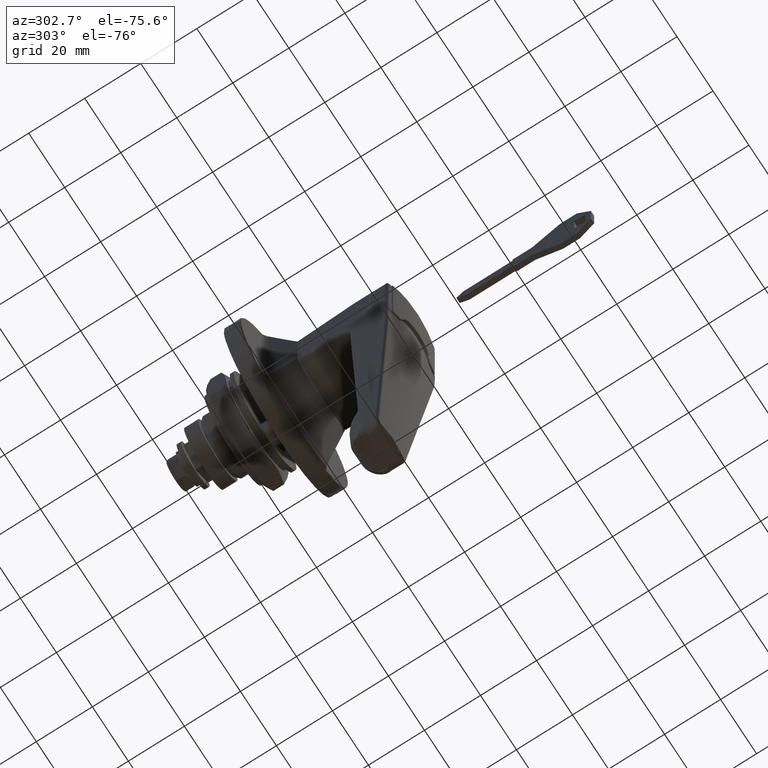
[diagram: clean part render]
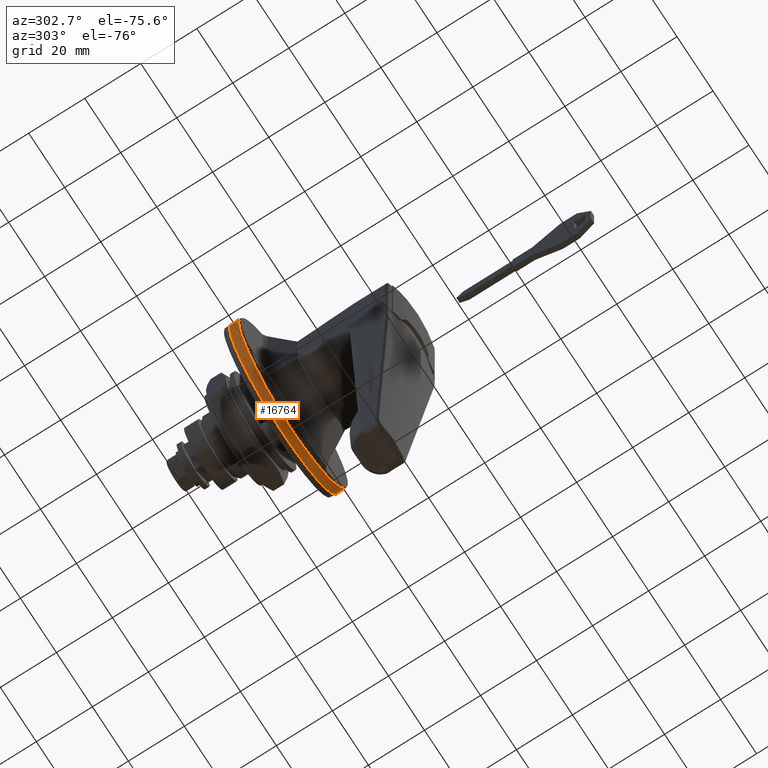
[diagram: same view with one face highlighted and labeled with its STEP entity id]
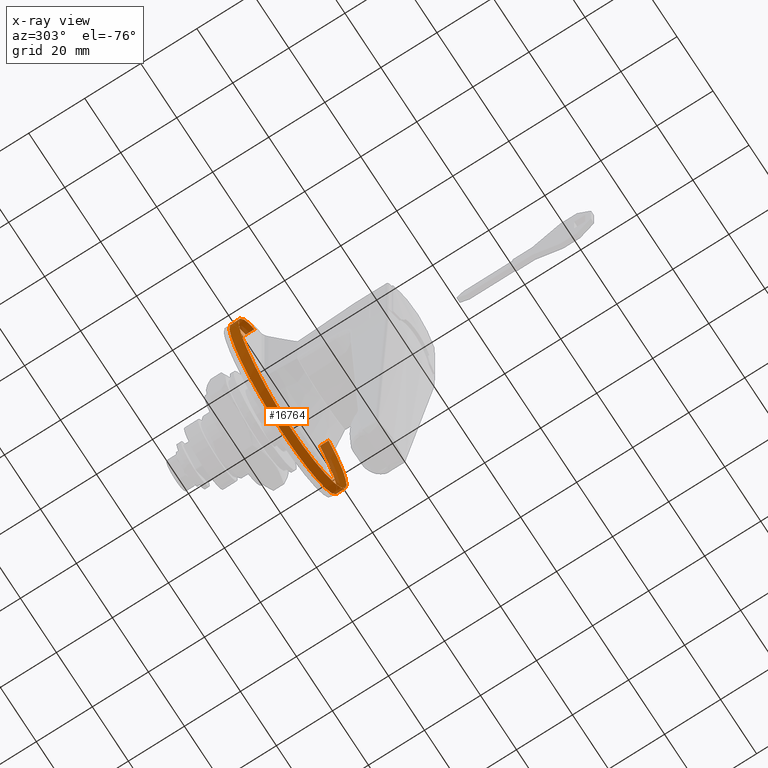
[diagram: x-ray of the same camera — body ghosted, the highlighted face saturated]
A machine part, auxiliary view. The second image highlights one B-rep face of the part: STEP entity #16764.
The next image is the same camera in x-ray: the body ghosted, the highlighted face saturated — about 11% of this face is hidden behind the body in this view.
In plain terms, the highlighted face is a freeform B-spline surface patch.
Its self-contained STEP definition (entity closure, byte-faithful):
#16516=CARTESIAN_POINT('',(-0.917377378766176,20.922959771710907,21.499529166736799));
#16517=CARTESIAN_POINT('',(-0.917377378766176,21.538267059640454,20.900723047181934));
#16518=CARTESIAN_POINT('',(-0.917377378766176,22.118320104303720,20.267706228469791));
#16519=CARTESIAN_POINT('',(-0.917377378766176,42.386026332773511,-1.850613875833936));
#16520=CARTESIAN_POINT('',(-0.917377378766176,20.267706228469791,-22.118320104303720));
#16521=CARTESIAN_POINT('',(-0.917377378766176,-1.850613875833936,-42.386026332773511));
#16522=CARTESIAN_POINT('',(-0.917377378766176,-22.118320104303720,-20.267706228469791));
#16523=CARTESIAN_POINT('',(-0.917377378766176,-42.386026332773511,1.850613875833936));
#16524=CARTESIAN_POINT('',(-0.917377378766176,-20.267706228469791,22.118320104303720));
#16525=CARTESIAN_POINT('',(-4.389593036112998,20.922959771710907,21.499529166736799));
#16526=CARTESIAN_POINT('',(-4.389593036112998,21.538267059640454,20.900723047181934));
#16527=CARTESIAN_POINT('',(-4.389593036112998,22.118320104303720,20.267706228469791));
#16528=CARTESIAN_POINT('',(-4.389593036112997,42.386026332773511,-1.850613875833936));
#16529=CARTESIAN_POINT('',(-4.389593036112998,20.267706228469791,-22.118320104303720));
#16530=CARTESIAN_POINT('',(-4.389593036112997,-1.850613875833936,-42.386026332773511));
#16531=CARTESIAN_POINT('',(-4.389593036112998,-22.118320104303720,-20.267706228469791));
#16532=CARTESIAN_POINT('',(-4.389593036112997,-42.386026332773511,1.850613875833936));
#16533=CARTESIAN_POINT('',(-4.389593036112998,-20.267706228469791,22.118320104303720));
#16541=(BOUNDED_SURFACE()B_SPLINE_SURFACE(2,1,((#16516,#16525),(#16517,#16526),(#16518,#16527),(#16519,#16528),(#16520,#16529),(#16521,#16530),(#16522,#16531),(#16523,#16532),(#16524,#16533)),.UNSPECIFIED.,.F.,.F.,.U.)B_SPLINE_SURFACE_WITH_KNOTS((3,2,2,2,3),(2,2),(0.0,1.988225099390859,51.693852584162251,101.399480068933600,151.105107553705010),(0.0,3.472215657346822),.UNSPECIFIED.)GEOMETRIC_REPRESENTATION_ITEM()RATIONAL_B_SPLINE_SURFACE(((0.977505800795127,0.977505800795127),(0.988284271247462,0.988284271247462),(1.0,1.0),(0.707106781186548,0.707106781186548),(1.0,1.0),(0.707106781186548,0.707106781186548),(1.0,1.0),(0.707106781186548,0.707106781186548),(1.0,1.0)))REPRESENTATION_ITEM('')SURFACE());
#16542=CARTESIAN_POINT('',(-4.304904849348441,30.0,-9.706398E-013));
#16543=VERTEX_POINT('',#16542);
#16544=CARTESIAN_POINT('',(-4.120643377488585,20.922971048391840,21.499522020460400));
#16545=VERTEX_POINT('',#16544);
#16546=CARTESIAN_POINT('',(-4.304904849348441,30.0,-9.706398E-013));
#16547=CARTESIAN_POINT('',(-4.302065136896840,29.999999926868309,0.978743073472528));
#16548=CARTESIAN_POINT('',(-4.299073368518741,29.952216771473442,1.954933006987231));
#16549=CARTESIAN_POINT('',(-4.291547223905221,29.761217068145299,3.902178930173397));
#16550=CARTESIAN_POINT('',(-4.287021009555033,29.618007104593151,4.873235500056715));
#16551=CARTESIAN_POINT('',(-4.280376423068679,29.377691768448638,6.083758471673516));
#16552=CARTESIAN_POINT('',(-4.279000724589303,29.326556348264639,6.325697866234449));
#16553=CARTESIAN_POINT('',(-4.276164685311580,29.218069263054510,6.809242690012811));
#16554=CARTESIAN_POINT('',(-4.274709173104317,29.160899709232741,7.050025150986446));
#16555=CARTESIAN_POINT('',(-4.270256346858888,28.980910081691480,7.768569564396342));
#16556=CARTESIAN_POINT('',(-4.267169577243630,28.849529812584070,8.242909400827921));
#16557=CARTESIAN_POINT('',(-4.257764245192155,28.421833194157621,9.652110509536689));
#16558=CARTESIAN_POINT('',(-4.251294744525851,28.092040351878190,10.573186000262419));
#16559=CARTESIAN_POINT('',(-4.239346878950053,27.344353906209840,12.379066525409399));
#16560=CARTESIAN_POINT('',(-4.233770539720596,26.926460355218119,13.263870885405870));
#16561=CARTESIAN_POINT('',(-4.223749675703872,26.232555554936319,14.563450332531961));
#16562=CARTESIAN_POINT('',(-4.220142810445370,25.990056732111569,14.992030876057729));
#16563=CARTESIAN_POINT('',(-4.214145637448444,25.609200328220290,15.627852843287910));
#16564=CARTESIAN_POINT('',(-4.212046779273161,25.479234300684499,15.838870578674079));
#16565=CARTESIAN_POINT('',(-4.207645922797154,25.214317405530831,16.257287464959969));
#16566=CARTESIAN_POINT('',(-4.205346949305622,25.079540527050899,16.464427765792021));
#16567=CARTESIAN_POINT('',(-4.193334247387852,24.394194799988352,17.489904698119819));
#16568=CARTESIAN_POINT('',(-4.182003289632653,23.809328140149269,18.277643277162070));
#16569=CARTESIAN_POINT('',(-4.156325959874822,22.568336892980280,19.789555474376328));
#16570=CARTESIAN_POINT('',(-4.142013276483199,21.912208027786338,20.513725892029161));
#16571=CARTESIAN_POINT('',(-4.124934418089857,21.121951010038011,21.304516016329242));
#16572=CARTESIAN_POINT('',(-4.122794604672652,21.022823971007789,21.402342601792551));
#16573=CARTESIAN_POINT('',(-4.120643377488585,20.922971048391840,21.499522020460400));
#16574=B_SPLINE_CURVE_WITH_KNOTS('',3,(#16546,#16547,#16548,#16549,#16550,#16551,#16552,#16553,#16554,#16555,#16556,#16557,#16558,#16559,#16560,#16561,#16562,#16563,#16564,#16565,#16566,#16567,#16568,#16569,#16570,#16571,#16572,#16573),.UNSPECIFIED.,.F.,.U.,(4,2,2,2,2,2,2,2,2,2,2,2,2,4),(0.0,0.062499999999999,0.124999999999999,0.140624999999999,0.156249999999999,0.187499999999999,0.249999999999998,0.312499999999998,0.343749999999998,0.359374999999998,0.374999999999998,0.437499999999998,0.499999999999998,0.508889579825999),.UNSPECIFIED.);
#16575=EDGE_CURVE('',#16543,#16545,#16574,.T.);
#16576=ORIENTED_EDGE('',*,*,#16575,.T.);
#16577=CARTESIAN_POINT('',(-0.999999999999890,20.922958555404961,21.499530350423999));
#16578=VERTEX_POINT('',#16577);
#16579=CARTESIAN_POINT('',(-0.999999999999890,20.922958555404961,21.499530350423999));
#16580=CARTESIAN_POINT('',(-4.120643377488585,20.922971048391840,21.499522020460400));
#16581=QUASI_UNIFORM_CURVE('',1,(#16579,#16580),.UNSPECIFIED.,.F.,.U.);
#16582=EDGE_CURVE('',#16578,#16545,#16581,.T.);
#16583=ORIENTED_EDGE('',*,*,#16582,.F.);
#16584=CARTESIAN_POINT('',(-0.999999999999890,0.0,-30.0));
#16585=VERTEX_POINT('',#16584);
#16586=CARTESIAN_POINT('',(-0.999999999999890,0.0,-30.0));
#16587=CARTESIAN_POINT('',(-0.999999999999890,29.999999999999993,-29.999999999999993));
#16588=CARTESIAN_POINT('',(-0.999999999999890,30.0,0.0));
#16589=CARTESIAN_POINT('',(-0.999999999999890,30.0,12.665915901389861));
#16590=CARTESIAN_POINT('',(-0.999999999999890,20.922958555404964,21.499530350424010));
#16598=(BOUNDED_CURVE()B_SPLINE_CURVE(2,(#16586,#16587,#16588,#16589,#16590),.UNSPECIFIED.,.F.,.U.)B_SPLINE_CURVE_WITH_KNOTS((3,2,3),(0.0,0.250000000000000,0.377050656396983),.UNSPECIFIED.)CURVE()GEOMETRIC_REPRESENTATION_ITEM()RATIONAL_B_SPLINE_CURVE((1.0,0.707106781186547,1.0,0.851150897182103,0.853592804101132))REPRESENTATION_ITEM(''));
#16599=EDGE_CURVE('',#16585,#16578,#16598,.T.);
#16600=ORIENTED_EDGE('',*,*,#16599,.F.);
#16601=CARTESIAN_POINT('',(-0.999999999999890,-20.267703128444989,22.118322944952300));
#16602=VERTEX_POINT('',#16601);
#16603=CARTESIAN_POINT('',(-0.999999999999890,-20.267703128444985,22.118322944952300));
#16604=CARTESIAN_POINT('',(-0.999999999999890,-30.000000000000004,13.200318436134989));
#16605=CARTESIAN_POINT('',(-0.999999999999890,-30.0,0.0));
#16606=CARTESIAN_POINT('',(-0.999999999999890,-29.999999999999993,-29.999999999999993));
#16607=CARTESIAN_POINT('',(-0.999999999999890,0.0,-30.0));
#16615=(BOUNDED_CURVE()B_SPLINE_CURVE(2,(#16603,#16604,#16605,#16606,#16607),.UNSPECIFIED.,.F.,.U.)B_SPLINE_CURVE_WITH_KNOTS((3,2,3),(0.618415187926033,0.750000000000000,1.0),.UNSPECIFIED.)CURVE()GEOMETRIC_REPRESENTATION_ITEM()RATIONAL_B_SPLINE_CURVE((0.853959783449560,0.845838803378770,1.0,0.707106781186547,1.0))REPRESENTATION_ITEM(''));
#16616=EDGE_CURVE('',#16602,#16585,#16615,.T.);
#16617=ORIENTED_EDGE('',*,*,#16616,.F.);
#16618=CARTESIAN_POINT('',(-4.106604976796395,-20.267716212127379,22.118326346990528));
#16619=VERTEX_POINT('',#16618);
#16620=CARTESIAN_POINT('',(-0.999999999999890,-20.267703128444989,22.118322944952300));
#16621=CARTESIAN_POINT('',(-4.106604976796395,-20.267716212127379,22.118326346990528));
#16622=QUASI_UNIFORM_CURVE('',1,(#16620,#16621),.UNSPECIFIED.,.F.,.U.);
#16623=EDGE_CURVE('',#16602,#16619,#16622,.T.);
#16624=ORIENTED_EDGE('',*,*,#16623,.T.);
#16625=CARTESIAN_POINT('',(-4.304904849348360,-30.0,3.166560E-011));
#16626=VERTEX_POINT('',#16625);
#16627=CARTESIAN_POINT('',(-4.106604976796395,-20.267716212127379,22.118326346990528));
#16628=CARTESIAN_POINT('',(-4.113518995237217,-20.592512607079161,21.820701556682700));
#16629=CARTESIAN_POINT('',(-4.120356001375373,-20.910019142552631,21.516578925371000));
#16630=CARTESIAN_POINT('',(-4.142014708307114,-21.912195418758088,20.513728245594670));
#16631=CARTESIAN_POINT('',(-4.156327344719776,-22.568325342550281,19.789557362957371));
#16632=CARTESIAN_POINT('',(-4.182004513668212,-23.809315265616540,18.277649021533989));
#16633=CARTESIAN_POINT('',(-4.193335359470400,-24.394179536509061,17.489914757356381));
#16634=CARTESIAN_POINT('',(-4.205347915031659,-25.079520909266542,16.464447040369141));
#16635=CARTESIAN_POINT('',(-4.207646858868791,-25.214296848648701,16.257308774425141));
#16636=CARTESIAN_POINT('',(-4.212047655619189,-25.479211750001419,15.838896365891790));
#16637=CARTESIAN_POINT('',(-4.214146545501192,-25.609180533376200,15.627874912005030));
#16638=CARTESIAN_POINT('',(-4.220143746642004,-25.990041510442531,14.992047152373679));
#16639=CARTESIAN_POINT('',(-4.223750614978578,-26.232542760206410,14.563463309458530));
#16640=CARTESIAN_POINT('',(-4.233771457810707,-26.926453328179019,13.263875750912179));
#16641=CARTESIAN_POINT('',(-4.239347745482477,-27.344348711893080,12.379068362099069));
#16642=CARTESIAN_POINT('',(-4.251295475731233,-28.092036464755850,10.573187126458331));
#16643=CARTESIAN_POINT('',(-4.257764890480200,-28.421828773783041,9.652113950788706));
#16644=CARTESIAN_POINT('',(-4.267170069245652,-28.849524004619020,8.242920877693921));
#16645=CARTESIAN_POINT('',(-4.270256784040487,-28.980903713350120,7.768584481772437));
#16646=CARTESIAN_POINT('',(-4.274709525358728,-29.160892511428528,7.050046458905258));
#16647=CARTESIAN_POINT('',(-4.276164983269929,-29.218060816731601,6.809270704019568));
#16648=CARTESIAN_POINT('',(-4.279001024681088,-29.326549670013279,6.325720732198890));
#16649=CARTESIAN_POINT('',(-4.280376722468328,-29.377685862338659,6.083778947245750));
#16650=CARTESIAN_POINT('',(-4.287021296822829,-29.618004580165149,4.873244934548551));
#16651=CARTESIAN_POINT('',(-4.291547472695953,-29.761215727409262,3.902182439048056));
#16652=CARTESIAN_POINT('',(-4.299073508863589,-29.952216592002451,1.954930415599012));
#16653=CARTESIAN_POINT('',(-4.302065209444880,-29.999999715881760,0.978740307207720));
#16654=CARTESIAN_POINT('',(-4.304904849348360,-30.0,3.166560E-011));
#16655=B_SPLINE_CURVE_WITH_KNOTS('',3,(#16627,#16628,#16629,#16630,#16631,#16632,#16633,#16634,#16635,#16636,#16637,#16638,#16639,#16640,#16641,#16642,#16643,#16644,#16645,#16646,#16647,#16648,#16649,#16650,#16651,#16652,#16653,#16654),.UNSPECIFIED.,.F.,.U.,(4,2,2,2,2,2,2,2,2,2,2,2,2,4),(0.471966683762916,0.499999999999999,0.562499999999999,0.624999999999999,0.640624999999999,0.656250000000000,0.687500000000000,0.750000000000000,0.812500000000000,0.843750000000000,0.859375000000000,0.875000000000000,0.937500000000000,1.0),.UNSPECIFIED.);
#16656=EDGE_CURVE('',#16619,#16626,#16655,.T.);
#16657=ORIENTED_EDGE('',*,*,#16656,.T.);
#16658=CARTESIAN_POINT('',(-3.864578674720880,7.097530E-017,-30.0));
#16659=VERTEX_POINT('',#16658);
#16660=CARTESIAN_POINT('',(-4.304904849348360,-30.0,3.166560E-011));
#16661=CARTESIAN_POINT('',(-4.302031230138308,-30.000000000001041,-0.990454725199646));
#16662=CARTESIAN_POINT('',(-4.299007346942066,-29.951071420949241,-1.975456653327037));
#16663=CARTESIAN_POINT('',(-4.291408129027746,-29.757131431522001,-3.934747414904977));
#16664=CARTESIAN_POINT('',(-4.286843479467354,-29.612118370440790,-4.909036108968146));
#16665=CARTESIAN_POINT('',(-4.278837909656132,-29.321742823768009,-6.362345892266990));
#16666=CARTESIAN_POINT('',(-4.275979309686639,-29.212534458497249,-6.846252399445560));
#16667=CARTESIAN_POINT('',(-4.270036327648094,-28.971653847351309,-7.802987553178418));
#16668=CARTESIAN_POINT('',(-4.266948345750976,-28.839852901719841,-8.276676299923054));
#16669=CARTESIAN_POINT('',(-4.257545130665905,-28.410965924250629,-9.683953692436653));
#16670=CARTESIAN_POINT('',(-4.251086333889471,-28.080474735171201,-10.603785983168130));
#16671=CARTESIAN_POINT('',(-4.239168485336916,-27.331549611745789,-12.407245236155349));
#16672=CARTESIAN_POINT('',(-4.233586911427616,-26.913115927169869,-13.290871430873731));
#16673=CARTESIAN_POINT('',(-4.223543712948236,-26.218502303326201,-14.588725271448631));
#16674=CARTESIAN_POINT('',(-4.219926968874345,-25.975784160827988,-15.016737577050231));
#16675=CARTESIAN_POINT('',(-4.213913175160633,-25.594622474696099,-15.651716932488929));
#16676=CARTESIAN_POINT('',(-4.211808233845622,-25.464544955000239,-15.862475666650100));
#16677=CARTESIAN_POINT('',(-4.207396820369192,-25.199524159668599,-16.280207804772449));
#16678=CARTESIAN_POINT('',(-4.205092497368956,-25.064700574318579,-16.487010403352659));
#16679=CARTESIAN_POINT('',(-4.193053413638390,-24.379146309623881,-17.510821109874779));
#16680=CARTESIAN_POINT('',(-4.181702895578319,-23.794192396730161,-18.297297660932820));
#16681=CARTESIAN_POINT('',(-4.156002081723186,-22.553161809093979,-19.806806555278250));
#16682=CARTESIAN_POINT('',(-4.141686525641770,-21.897080945993149,-20.529835796921859));
#16683=CARTESIAN_POINT('',(-4.111790155808069,-20.513591894497729,-21.912299272097119));
#16684=CARTESIAN_POINT('',(-4.096199772134334,-19.786189657152189,-22.571738635716301));
#16685=CARTESIAN_POINT('',(-4.076645520929774,-18.830924918425389,-23.355027501661599));
#16686=CARTESIAN_POINT('',(-4.072725930390611,-18.637346674659732,-23.509792931106780));
#16687=CARTESIAN_POINT('',(-4.064932334020252,-18.247571453379610,-23.813592563676181));
#16688=CARTESIAN_POINT('',(-4.061054390711020,-18.051187094171951,-23.962789151134569));
#16689=CARTESIAN_POINT('',(-4.049493879209265,-17.457591510360299,-24.402355957971071));
#16690=CARTESIAN_POINT('',(-4.041885561728466,-17.055940550696370,-24.684708255086779));
#16691=CARTESIAN_POINT('',(-4.019453814528780,-15.833503994324939,-25.500193530486200));
#16692=CARTESIAN_POINT('',(-4.005033995769542,-14.995275685876990,-26.001829200576250));
#16693=CARTESIAN_POINT('',(-3.977471599691349,-13.272733017458410,-26.921886503710379));
#16694=CARTESIAN_POINT('',(-3.964318510997015,-12.388419754013080,-27.340309808575089));
#16695=CARTESIAN_POINT('',(-3.945503263068262,-11.026729140617210,-27.904347610490468));
#16696=CARTESIAN_POINT('',(-3.939395168890960,-10.566951561782430,-28.081741889592490));
#16697=CARTESIAN_POINT('',(-3.930573948680280,-9.868280196045607,-28.331576362567990));
#16698=CARTESIAN_POINT('',(-3.927692593441118,-9.634049833796217,-28.412075382885082));
#16699=CARTESIAN_POINT('',(-3.922088371707670,-9.165174869246854,-28.566772890526838));
#16700=CARTESIAN_POINT('',(-3.919361539808763,-8.930220099579845,-28.641084091685759));
#16701=CARTESIAN_POINT('',(-3.906130628483034,-7.752885979081922,-28.997607187122028));
#16702=CARTESIAN_POINT('',(-3.896840163560721,-6.802844630671560,-29.234831117509490));
#16703=CARTESIAN_POINT('',(-3.881446207599793,-4.886773326867385,-29.615426588016181));
#16704=CARTESIAN_POINT('',(-3.875335517918559,-3.920742793865551,-29.758794448693290));
#16705=CARTESIAN_POINT('',(-3.866906345934893,-1.972586726443325,-29.951076319589699));
#16706=CARTESIAN_POINT('',(-3.864578674720875,-0.990462898975278,-30.0));
#16707=CARTESIAN_POINT('',(-3.864578674720875,-1.036910E-014,-30.0));
#16708=B_SPLINE_CURVE_WITH_KNOTS('',3,(#16660,#16661,#16662,#16663,#16664,#16665,#16666,#16667,#16668,#16669,#16670,#16671,#16672,#16673,#16674,#16675,#16676,#16677,#16678,#16679,#16680,#16681,#16682,#16683,#16684,#16685,#16686,#16687,#16688,#16689,#16690,#16691,#16692,#16693,#16694,#16695,#16696,#16697,#16698,#16699,#16700,#16701,#16702,#16703,#16704,#16705,#16706,#16707),.UNSPECIFIED.,.F.,.U.,(4,2,2,2,2,2,2,2,2,2,2,2,2,2,2,2,2,2,2,2,2,2,2,4),(0.0,0.062500000000000,0.125000000000000,0.156250000000000,0.187500000000001,0.250000000000001,0.312500000000001,0.343750000000001,0.359375000000001,0.375000000000001,0.437500000000001,0.500000000000000,0.562500000000000,0.578125000000000,0.593750000000000,0.625000000000000,0.687500000000000,0.750000000000000,0.781250000000000,0.796875000000000,0.812500000000000,0.875000000000000,0.937500000000000,1.0),.UNSPECIFIED.);
#16709=EDGE_CURVE('',#16626,#16659,#16708,.T.);
#16710=ORIENTED_EDGE('',*,*,#16709,.T.);
#16711=CARTESIAN_POINT('',(-3.864578674720880,7.097530E-017,-30.0));
#16712=CARTESIAN_POINT('',(-3.864578674720880,0.990463536698212,-30.0));
#16713=CARTESIAN_POINT('',(-3.866906348203888,1.972586446730886,-29.951076260755539));
#16714=CARTESIAN_POINT('',(-3.875335492944294,3.920737825919935,-29.758795025468039));
#16715=CARTESIAN_POINT('',(-3.881446153344506,4.886764587094893,-29.615427855041919));
#16716=CARTESIAN_POINT('',(-3.896839995148929,6.802825655251746,-29.234835355635688));
#16717=CARTESIAN_POINT('',(-3.906130375067932,7.752860539217773,-28.997613701786879));
#16718=CARTESIAN_POINT('',(-3.919361136731161,8.930184954739039,-28.641095031576860));
#16719=CARTESIAN_POINT('',(-3.922087936561063,9.165137702044431,-28.566784794870241));
#16720=CARTESIAN_POINT('',(-3.927692089829701,9.634008460056878,-28.412089391761000));
#16721=CARTESIAN_POINT('',(-3.930573393838167,9.868235529843876,-28.331591943950450));
#16722=CARTESIAN_POINT('',(-3.939394687715854,10.566914892388750,-28.081755783087669));
#16723=CARTESIAN_POINT('',(-3.945502828447706,11.026696945460101,-27.904360399423069));
#16724=CARTESIAN_POINT('',(-3.964318198678706,12.388398632847560,-27.340319651117792));
#16725=CARTESIAN_POINT('',(-3.977471341595564,13.272716154186369,-26.921894872994180));
#16726=CARTESIAN_POINT('',(-4.005033765920090,14.995262054454480,-26.001837119334240));
#16727=CARTESIAN_POINT('',(-4.019453559389955,15.833489332664531,-25.500202464690879));
#16728=CARTESIAN_POINT('',(-4.041885195487903,17.055920970932711,-24.684721739980269));
#16729=CARTESIAN_POINT('',(-4.049493463774727,17.457569728158980,-24.402371465321679));
#16730=CARTESIAN_POINT('',(-4.061053882671128,18.051161233392460,-23.962808612771980));
#16731=CARTESIAN_POINT('',(-4.064931791989184,18.247544103906019,-23.813613496998499));
#16732=CARTESIAN_POINT('',(-4.072725314244615,18.637316101066151,-23.509817144277509));
#16733=CARTESIAN_POINT('',(-4.076644909091068,18.830894825825862,-23.355051792369679));
#16734=CARTESIAN_POINT('',(-4.096199363630364,19.786170512996179,-22.571755870556501));
#16735=CARTESIAN_POINT('',(-4.111789864669733,20.513578370828380,-21.912312116415720));
#16736=CARTESIAN_POINT('',(-4.141686372743576,21.897073921358739,-20.529843485664671));
#16737=CARTESIAN_POINT('',(-4.156001949047836,22.553155656057928,-19.806813473390388));
#16738=CARTESIAN_POINT('',(-4.181702737937717,23.794184531108900,-18.297307794197341));
#16739=CARTESIAN_POINT('',(-4.193053212673995,24.379135853606090,-17.510835223053270));
#16740=CARTESIAN_POINT('',(-4.205092236986832,25.064685500193100,-16.487033290589430));
#16741=CARTESIAN_POINT('',(-4.207396547781302,25.199508093079260,-16.280232637502891));
#16742=CARTESIAN_POINT('',(-4.211807936572477,25.464526786564679,-15.862504795924000));
#16743=CARTESIAN_POINT('',(-4.213912922365642,25.594606700445109,-15.651742766626629));
#16744=CARTESIAN_POINT('',(-4.219926797603082,25.975772809069479,-15.016757376480440));
#16745=CARTESIAN_POINT('',(-4.223543580284372,26.218493276469928,-14.588741608226240));
#16746=CARTESIAN_POINT('',(-4.233586864099654,26.913112356813990,-13.290879160878260));
#16747=CARTESIAN_POINT('',(-4.239168457337343,27.331547659943048,-12.407249599732960));
#16748=CARTESIAN_POINT('',(-4.251086313491420,28.080473645634790,-10.603788943326901));
#16749=CARTESIAN_POINT('',(-4.257545095653911,28.410964070744839,-9.683958612343997));
#16750=CARTESIAN_POINT('',(-4.266948263926250,28.839849297928851,-8.276688705722814));
#16751=CARTESIAN_POINT('',(-4.270036226405198,28.971649559493731,-7.803003213439597));
#16752=CARTESIAN_POINT('',(-4.275979165797551,29.212528810671280,-6.846276201904415));
#16753=CARTESIAN_POINT('',(-4.278837768558293,29.321737542101118,-6.362370493262452));
#16754=CARTESIAN_POINT('',(-4.286843408168476,29.612116111917580,-4.909051079374512));
#16755=CARTESIAN_POINT('',(-4.291408087225596,29.757130235475699,-3.934757366253593));
#16756=CARTESIAN_POINT('',(-4.299007339346239,29.951071356306262,-1.975459438156102));
#16757=CARTESIAN_POINT('',(-4.302031228290619,29.999999999999972,-0.990455362047679));
#16758=CARTESIAN_POINT('',(-4.304904849348445,30.0,-9.810806E-013));
#16759=B_SPLINE_CURVE_WITH_KNOTS('',3,(#16711,#16712,#16713,#16714,#16715,#16716,#16717,#16718,#16719,#16720,#16721,#16722,#16723,#16724,#16725,#16726,#16727,#16728,#16729,#16730,#16731,#16732,#16733,#16734,#16735,#16736,#16737,#16738,#16739,#16740,#16741,#16742,#16743,#16744,#16745,#16746,#16747,#16748,#16749,#16750,#16751,#16752,#16753,#16754,#16755,#16756,#16757,#16758),.UNSPECIFIED.,.F.,.U.,(4,2,2,2,2,2,2,2,2,2,2,2,2,2,2,2,2,2,2,2,2,2,2,4),(0.0,0.062500000000000,0.125000000000000,0.187500000000000,0.203125000000000,0.218750000000000,0.250000000000000,0.312500000000001,0.375000000000001,0.406250000000001,0.421875000000001,0.437500000000001,0.500000000000001,0.562500000000000,0.624999999999999,0.640624999999999,0.656249999999999,0.687500000000000,0.750000000000000,0.812500000000000,0.843750000000000,0.875000000000000,0.937500000000000,1.0),.UNSPECIFIED.);
#16760=EDGE_CURVE('',#16659,#16543,#16759,.T.);
#16761=ORIENTED_EDGE('',*,*,#16760,.T.);
#16762=EDGE_LOOP('',(#16576,#16583,#16600,#16617,#16624,#16657,#16710,#16761));
#16763=FACE_OUTER_BOUND('',#16762,.T.);
#16764=ADVANCED_FACE('',(#16763),#16541,.T.);